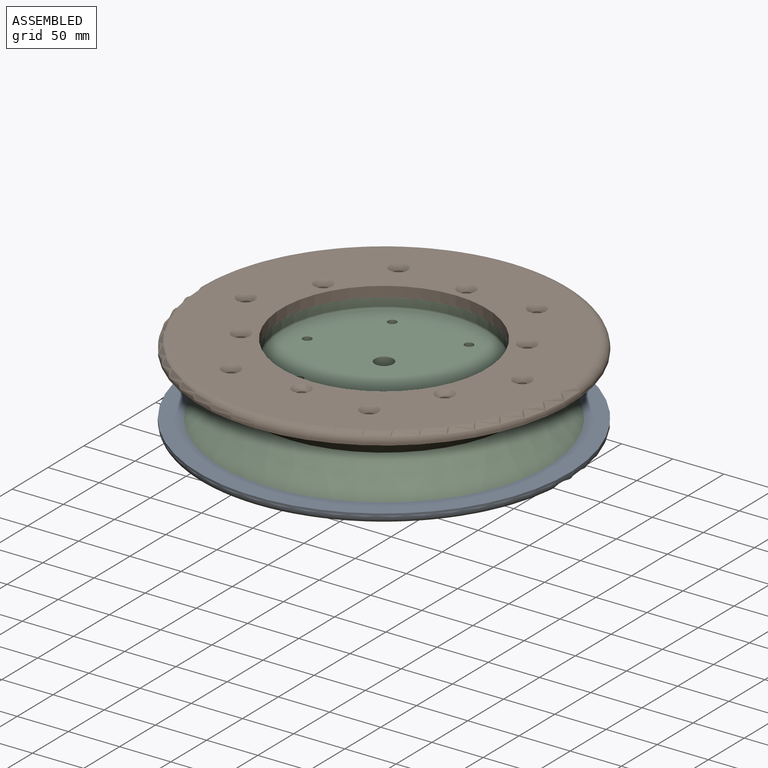
[diagram: assembled view]
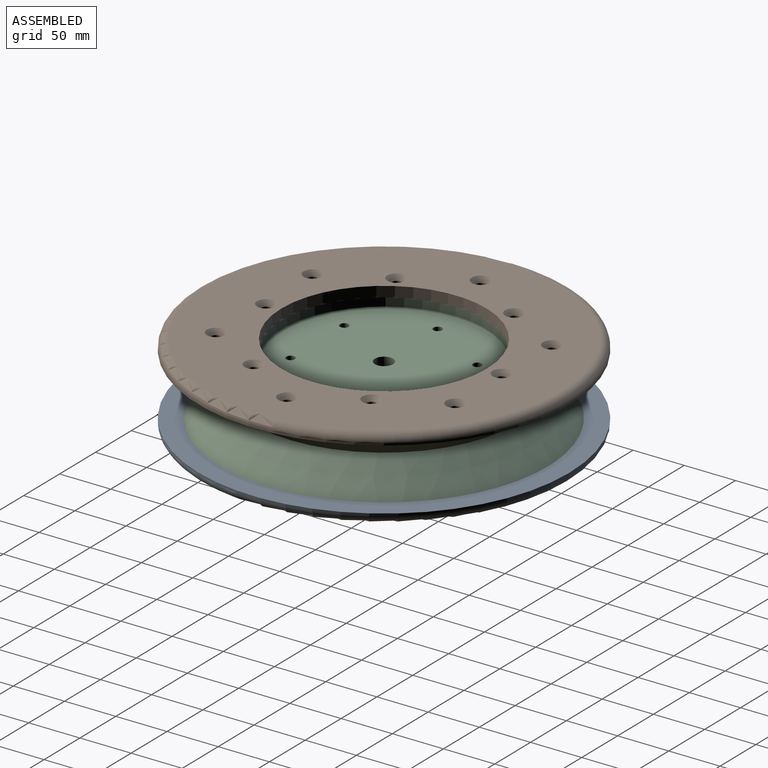
[diagram: assembled view, second angle]
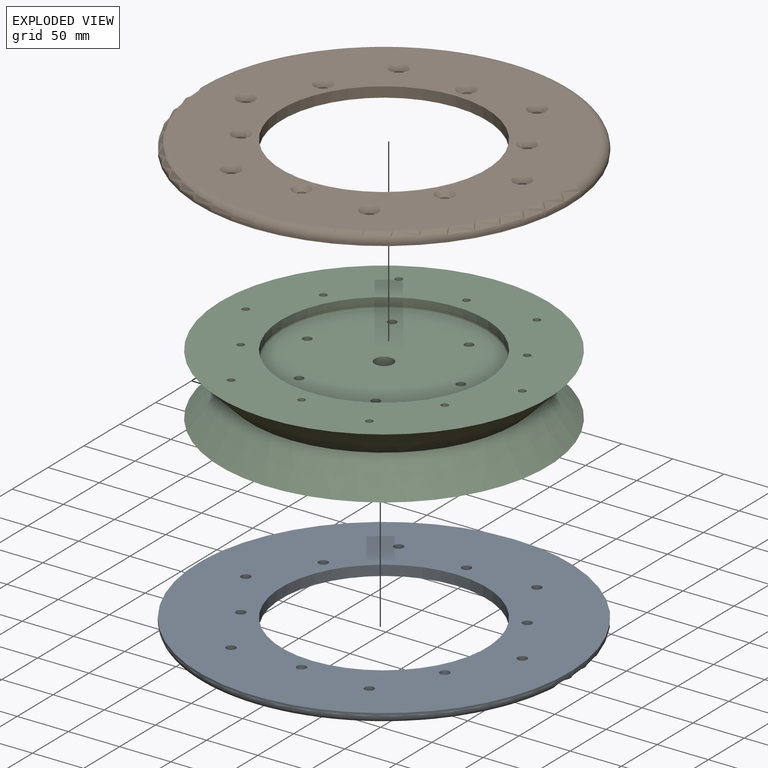
[diagram: exploded view]
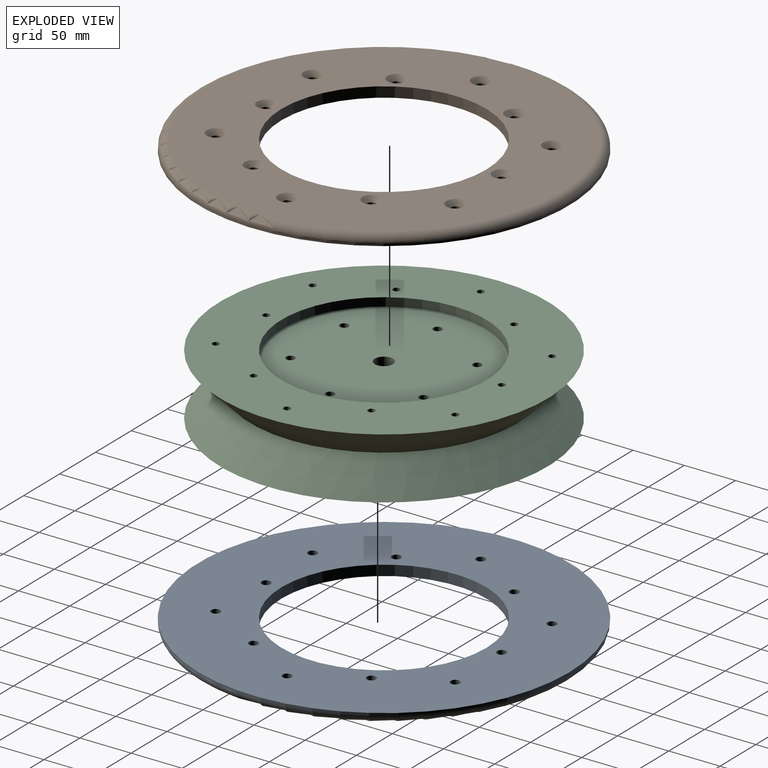
[diagram: exploded view, second angle]
ASSEMBLY  parts=3 mates=4
PART A: 29 faces, bbox 391.8x10x391.8 mm
  f0: cylinder r=181mm len=362mm, axis (0,1,0), area 2274.5mm2, adj f3,f4
  f1: cylinder r=100.08mm len=200.15mm, axis (0,1,0), area 6287.9mm2, adj f2,f3
  f2: plane 346x346mm, normal (0,-1,0), area 59535.1mm2, adj f1,f4,f6,f8,f10,f12,f14,f16
  f3: plane 362x362mm, normal (0,1,0), area 70695.2mm2, adj f0,f1,f5,f7,f9,f11,f13,f15
  f4: torus R=173mm, axis (0,-1,0), area 14061.7mm2, adj f0,f2
  f5: cylinder r=4.5mm len=9mm, axis (0,-1,0), area 156.6mm2, adj f3,f6
  f6: cone r=4.5mm half-angle=45deg, axis (0,-1,0), area 266.7mm2, adj f2,f5
  f7: cylinder r=4.5mm len=9mm, axis (0,-1,0), area 156.6mm2, adj f3,f8
  f8: cone r=4.5mm half-angle=45deg, axis (0,-1,0), area 266.7mm2, adj f2,f7
  f9: cylinder r=4.5mm len=9mm, axis (0,-1,0), area 156.6mm2, adj f3,f10
  f10: cone r=4.5mm half-angle=45deg, axis (0,-1,0), area 266.7mm2, adj f2,f9
  f11: cylinder r=4.5mm len=9mm, axis (0,-1,0), area 156.6mm2, adj f3,f12
  f12: cone r=4.5mm half-angle=45deg, axis (0,-1,0), area 266.7mm2, adj f2,f11
  f13: cylinder r=4.5mm len=9mm, axis (0,-1,0), area 156.6mm2, adj f3,f14
  f14: cone r=4.5mm half-angle=45deg, axis (0,-1,0), area 266.7mm2, adj f2,f13
  f15: cylinder r=4.5mm len=9mm, axis (0,-1,0), area 156.6mm2, adj f3,f16
  f16: cone r=4.5mm half-angle=45deg, axis (0,-1,0), area 266.7mm2, adj f2,f15
  f17: cylinder r=4.5mm len=9mm, axis (0,-1,0), area 156.6mm2, adj f3,f18
  f18: cone r=4.5mm half-angle=45deg, axis (0,-1,0), area 266.7mm2, adj f2,f17
  f19: cylinder r=4.5mm len=9mm, axis (0,-1,0), area 156.6mm2, adj f3,f20
  f20: cone r=4.5mm half-angle=45deg, axis (0,-1,0), area 266.7mm2, adj f2,f19
  f21: cylinder r=4.5mm len=9mm, axis (0,-1,0), area 156.6mm2, adj f3,f22
  f22: cone r=4.5mm half-angle=45deg, axis (0,-1,0), area 266.7mm2, adj f2,f21
  f23: cylinder r=4.5mm len=9mm, axis (0,-1,0), area 156.6mm2, adj f3,f24
  f24: cone r=4.5mm half-angle=45deg, axis (0,-1,0), area 266.7mm2, adj f2,f23
  f25: cylinder r=4.5mm len=9mm, axis (0,-1,0), area 156.6mm2, adj f3,f26
  f26: cone r=4.5mm half-angle=45deg, axis (0,-1,0), area 266.7mm2, adj f2,f25
  f27: cylinder r=4.5mm len=9mm, axis (0,-1,0), area 156.6mm2, adj f3,f28
  f28: cone r=4.5mm half-angle=45deg, axis (0,-1,0), area 266.7mm2, adj f2,f27
PART B: same geometry as A
PART C: 65 faces, bbox 320x320x60 mm
  f0: plane 196.15x196.15mm, normal (0,0,1), area 29623.1mm2, adj f8,f9,f11,f12,f13,f14,f15,f16
  f1: cylinder r=100.08mm len=200.15mm, axis (0,0,-1), area 5061.8mm2, adj f2,f9
  f2: plane 320x320mm, normal (0,0,1), area 48525.9mm2, adj f1,f3,f18,f20,f22,f24,f26,f28
  f3: cone r=130mm half-angle=45deg, axis (0,0,1), area 38653.1mm2, adj f2,f4
  f4: cone r=130mm half-angle=45deg, axis (0,0,-1), area 38653.1mm2, adj f3,f5
  f5: plane 320x320mm, normal (0,0,-1), area 48525.9mm2, adj f4,f6,f42,f44,f46,f48,f50,f52
  f6: cylinder r=100.08mm len=200.15mm, axis (0,0,-1), area 5061.8mm2, adj f5,f10
  f7: plane 196.15x196.15mm, normal (0,0,-1), area 29623.1mm2, adj f8,f10,f11,f12,f13,f14,f15,f16
  f8: cylinder r=9mm len=39.9mm, axis (0,0,1), area 2256.3mm2, adj f0,f7
  f9: torus R=98.07mm, axis (0,0,-1), area 1961.1mm2, adj f0,f1
  f10: torus R=98.07mm, axis (0,0,-1), area 1961.1mm2, adj f6,f7
  f11: cylinder r=4.25mm len=39.9mm, axis (0,0,1), area 1065.5mm2, adj f0,f7
  f12: cylinder r=4.25mm len=39.9mm, axis (0,0,1), area 1065.5mm2, adj f0,f7
  f13: cylinder r=4.25mm len=39.9mm, axis (0,0,1), area 1065.5mm2, adj f0,f7
  f14: cylinder r=4.25mm len=39.9mm, axis (0,0,1), area 1065.5mm2, adj f0,f7
  f15: cylinder r=4.25mm len=39.9mm, axis (0,0,1), area 1065.5mm2, adj f0,f7
  f16: cylinder r=4.25mm len=39.9mm, axis (0,0,1), area 1065.5mm2, adj f0,f7
  f17: cone r=0mm half-angle=59deg, axis (0,0,1), area 42.4mm2, adj f18
  f18: cylinder r=3.4mm len=18mm, axis (0,0,1), area 384.5mm2, adj f2,f17
  f19: cone r=0mm half-angle=59deg, axis (0,0,1), area 42.4mm2, adj f20
  f20: cylinder r=3.4mm len=18mm, axis (0,0,1), area 384.5mm2, adj f2,f19
  f21: cone r=0mm half-angle=59deg, axis (0,0,1), area 42.4mm2, adj f22
  f22: cylinder r=3.4mm len=18mm, axis (0,0,1), area 384.5mm2, adj f2,f21
  f23: cone r=0mm half-angle=59deg, axis (0,0,1), area 42.4mm2, adj f24
  f24: cylinder r=3.4mm len=18mm, axis (0,0,1), area 384.5mm2, adj f2,f23
  f25: cone r=0mm half-angle=59deg, axis (0,0,1), area 42.4mm2, adj f26
  f26: cylinder r=3.4mm len=18mm, axis (0,0,1), area 384.5mm2, adj f2,f25
  f27: cone r=0mm half-angle=59deg, axis (0,0,1), area 42.4mm2, adj f28
  f28: cylinder r=3.4mm len=18mm, axis (0,0,1), area 384.5mm2, adj f2,f27
  f29: cone r=0mm half-angle=59deg, axis (0,0,1), area 42.4mm2, adj f30
  f30: cylinder r=3.4mm len=18mm, axis (0,0,1), area 384.5mm2, adj f2,f29
  f31: cone r=0mm half-angle=59deg, axis (0,0,1), area 42.4mm2, adj f32
  f32: cylinder r=3.4mm len=18mm, axis (0,0,1), area 384.5mm2, adj f2,f31
  f33: cone r=0mm half-angle=59deg, axis (0,0,1), area 42.4mm2, adj f34
  f34: cylinder r=3.4mm len=18mm, axis (0,0,1), area 384.5mm2, adj f2,f33
  f35: cone r=0mm half-angle=59deg, axis (0,0,1), area 42.4mm2, adj f36
  f36: cylinder r=3.4mm len=18mm, axis (0,0,1), area 384.5mm2, adj f2,f35
  f37: cone r=0mm half-angle=59deg, axis (0,0,1), area 42.4mm2, adj f38
  f38: cylinder r=3.4mm len=18mm, axis (0,0,1), area 384.5mm2, adj f2,f37
  f39: cone r=0mm half-angle=59deg, axis (0,0,1), area 42.4mm2, adj f40
  f40: cylinder r=3.4mm len=18mm, axis (0,0,1), area 384.5mm2, adj f2,f39
  f41: cone r=0mm half-angle=59deg, axis (0,0,-1), area 42.4mm2, adj f42
  f42: cylinder r=3.4mm len=18mm, axis (0,0,-1), area 384.5mm2, adj f5,f41
  f43: cone r=0mm half-angle=59deg, axis (0,0,-1), area 42.4mm2, adj f44
  f44: cylinder r=3.4mm len=18mm, axis (0,0,-1), area 384.5mm2, adj f5,f43
  f45: cone r=0mm half-angle=59deg, axis (0,0,-1), area 42.4mm2, adj f46
  f46: cylinder r=3.4mm len=18mm, axis (0,0,-1), area 384.5mm2, adj f5,f45
  f47: cone r=0mm half-angle=59deg, axis (0,0,-1), area 42.4mm2, adj f48
  f48: cylinder r=3.4mm len=18mm, axis (0,0,-1), area 384.5mm2, adj f5,f47
  f49: cone r=0mm half-angle=59deg, axis (0,0,-1), area 42.4mm2, adj f50
  f50: cylinder r=3.4mm len=18mm, axis (0,0,-1), area 384.5mm2, adj f5,f49
  f51: cone r=0mm half-angle=59deg, axis (0,0,-1), area 42.4mm2, adj f52
  f52: cylinder r=3.4mm len=18mm, axis (0,0,-1), area 384.5mm2, adj f5,f51
  f53: cone r=0mm half-angle=59deg, axis (0,0,-1), area 42.4mm2, adj f54
  f54: cylinder r=3.4mm len=18mm, axis (0,0,-1), area 384.5mm2, adj f5,f53
  f55: cone r=0mm half-angle=59deg, axis (0,0,-1), area 42.4mm2, adj f56
  f56: cylinder r=3.4mm len=18mm, axis (0,0,-1), area 384.5mm2, adj f5,f55
  f57: cone r=0mm half-angle=59deg, axis (0,0,-1), area 42.4mm2, adj f58
  f58: cylinder r=3.4mm len=18mm, axis (0,0,-1), area 384.5mm2, adj f5,f57
  f59: cone r=0mm half-angle=59deg, axis (0,0,-1), area 42.4mm2, adj f60
  f60: cylinder r=3.4mm len=18mm, axis (0,0,-1), area 384.5mm2, adj f5,f59
  f61: cone r=0mm half-angle=59deg, axis (0,0,-1), area 42.4mm2, adj f62
  f62: cylinder r=3.4mm len=18mm, axis (0,0,-1), area 384.5mm2, adj f5,f61
  f63: cone r=0mm half-angle=59deg, axis (0,0,-1), area 42.4mm2, adj f64
  f64: cylinder r=3.4mm len=18mm, axis (0,0,-1), area 384.5mm2, adj f5,f63
PLACE A rot(axis=(1,0,0),90deg) t=(4.94,-9.63,-48.73)mm
PLACE B rot(axis=(-1,0,0),90deg) t=(4.94,-9.63,11.27)mm
PLACE C t=(4.94,-9.63,-18.73)mm
MATE slider B.f21 <-> C.f31  axis (0,0,-1) through (-94.65,-67.13,11.27)mm
MATE slider B.f1 <-> C.f1  axis (0,0,-1) through (4.94,-9.63,11.27)mm
MATE slider A.f17 <-> C.f31  axis (0,0,1) through (-94.65,-67.13,-48.73)mm
MATE slider A.f1 <-> C.f1  axis (0,0,1) through (4.94,-9.63,-48.73)mm
